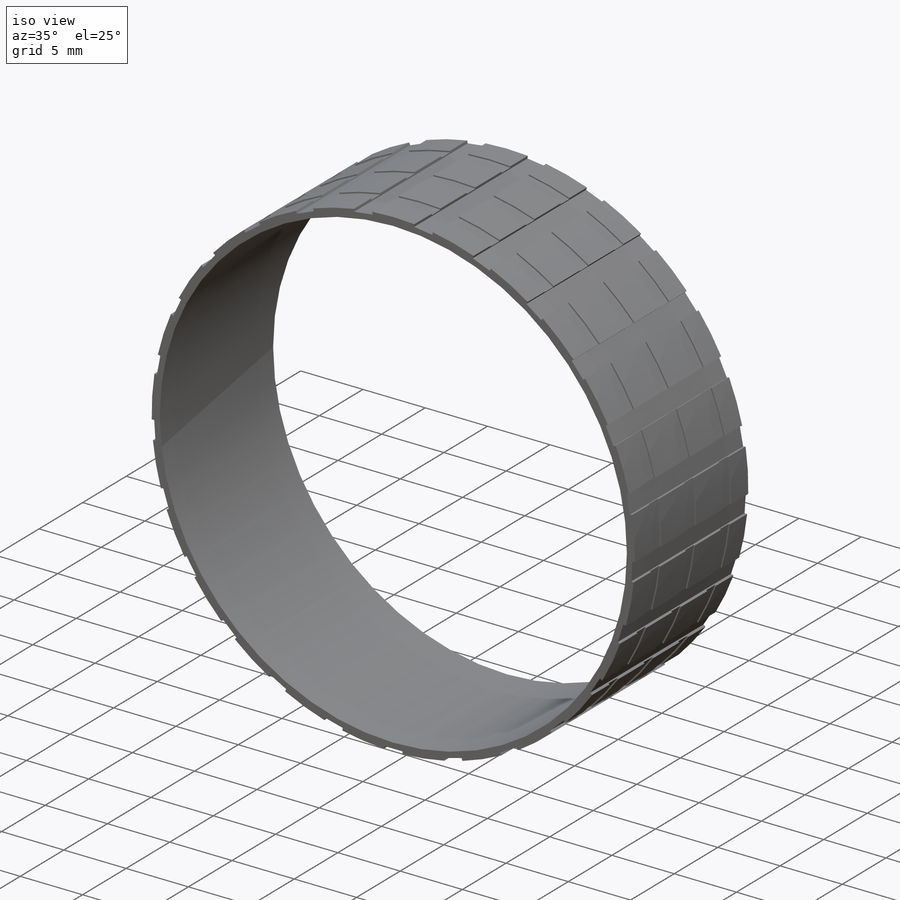
[diagram: iso view]
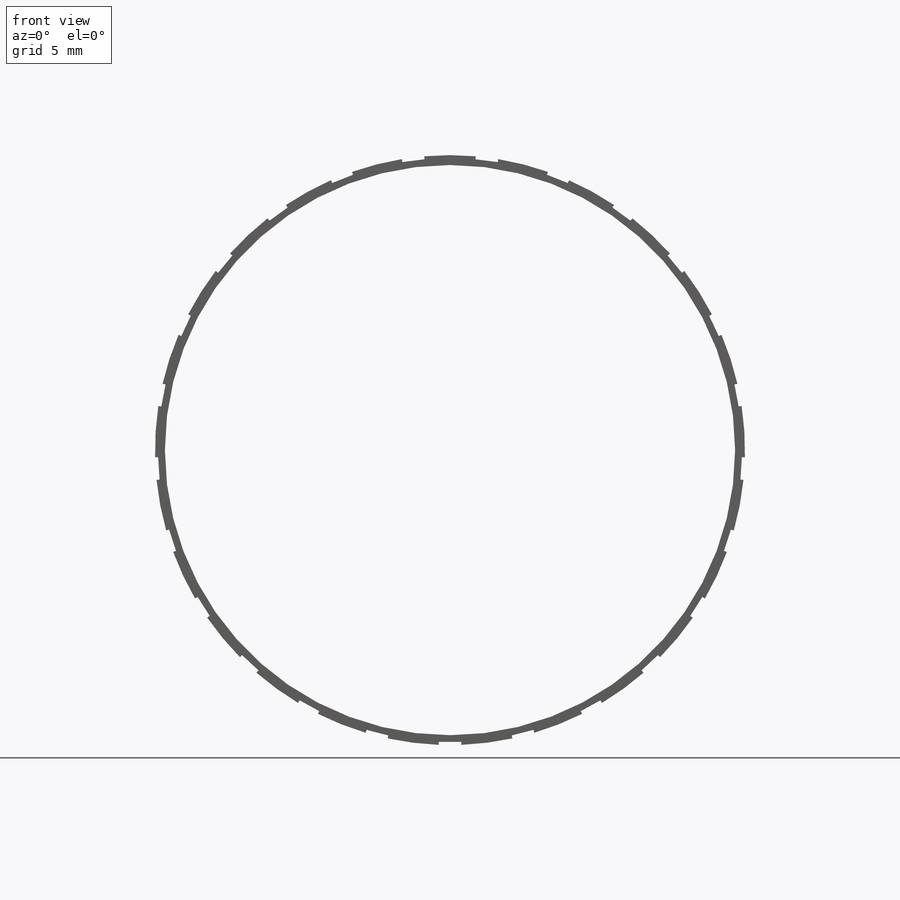
[diagram: front view]
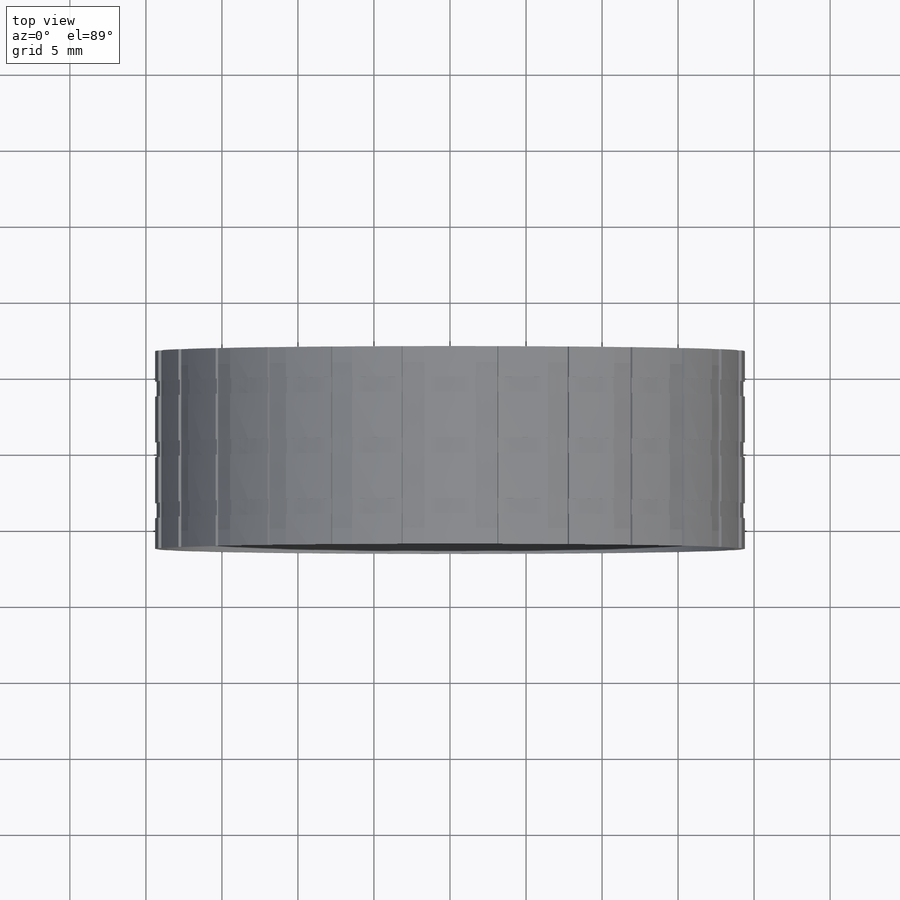
[diagram: top view]
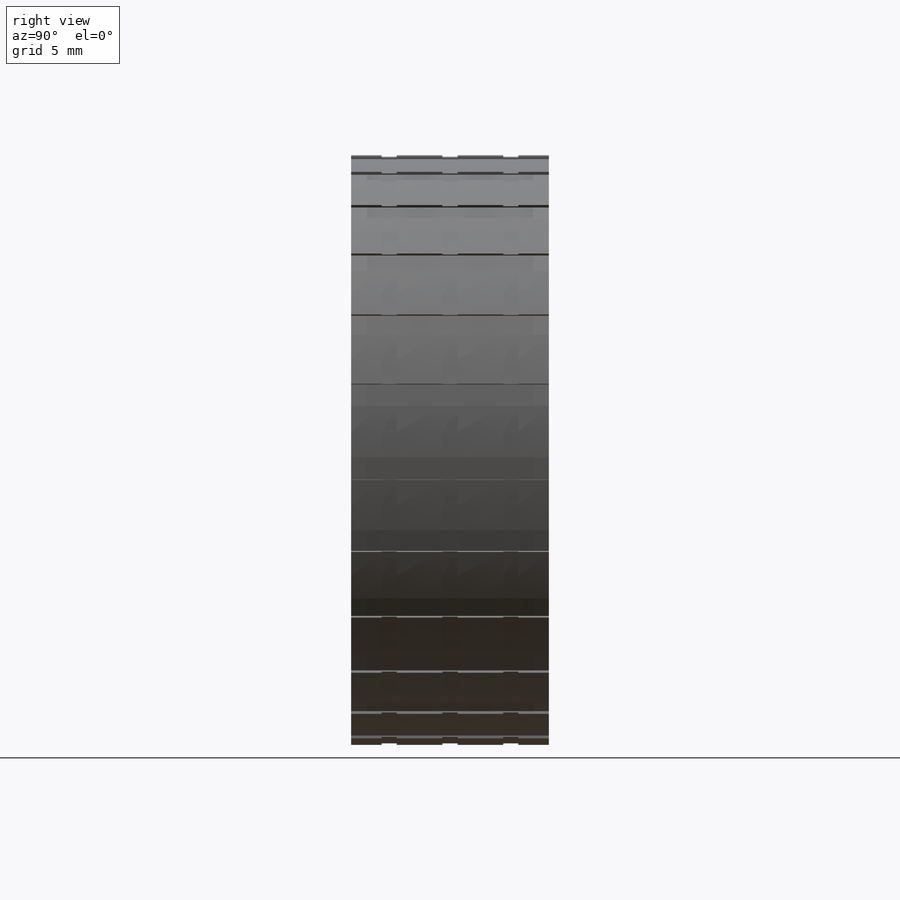
[diagram: right view]
SOLIDWORKS PART (.sldprt)
format: sldprt  version: not decoded by parser v0  size: 392,704 bytes
history: native  units: mm
features: sketch x3, material x1, extrude x1, cut_extrude x1, revolve x1, pattern_circular x1 (+13 scaffold rows collapsed)
feature tree (21):
  scaffold x13  (default folders/planes/origin — collapsed)
  material  "Material <not specified>"
  sketch  "Sketch1"  dims[D1=37.5mm]
  sketch  "Sketch2"  dims[D1=0.45mm]
  extrude  "Boss-Extrude1"  Depth=13mm
  cut_extrude  "Cut-Extrude1"  [1 undecoded]
  sketch  "Sketch3"  dims[c1.D2=0.5mm c1.D1=0.2mm c1.D3=4.0mm c2.D2=1.0mm c2.D3=4.0mm]
  revolve  "Revolve1"  Angle=10deg
  pattern_circular  "CirPattern1"  Count=25  [1 undecoded]
decode coverage: 6 of 7 modeling features carry decoded parameters
note: 2 parameter values undecoded
note: suppression state not decoded; provenance and decode notes live in map.json
